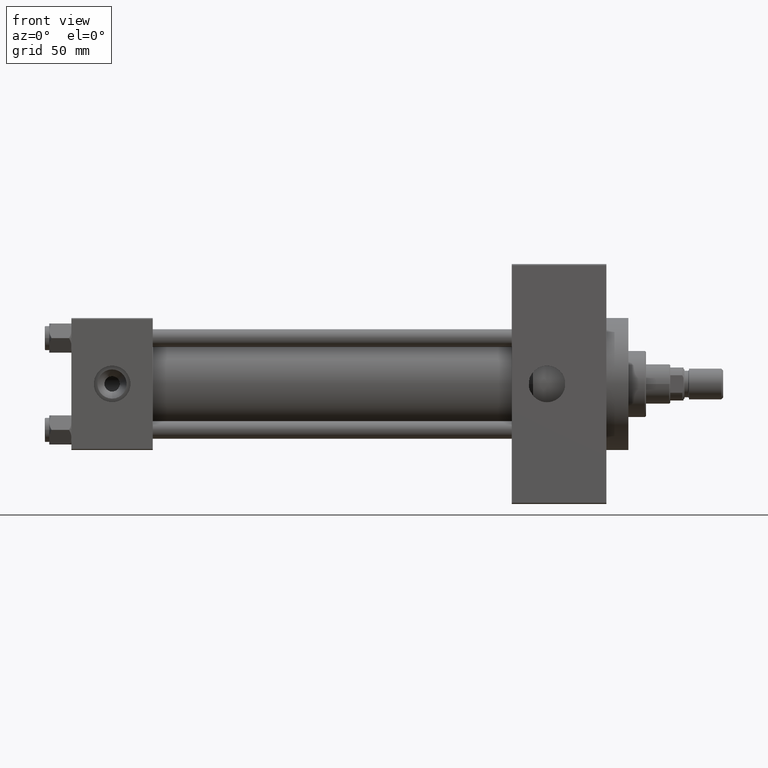
[diagram: clean part render]
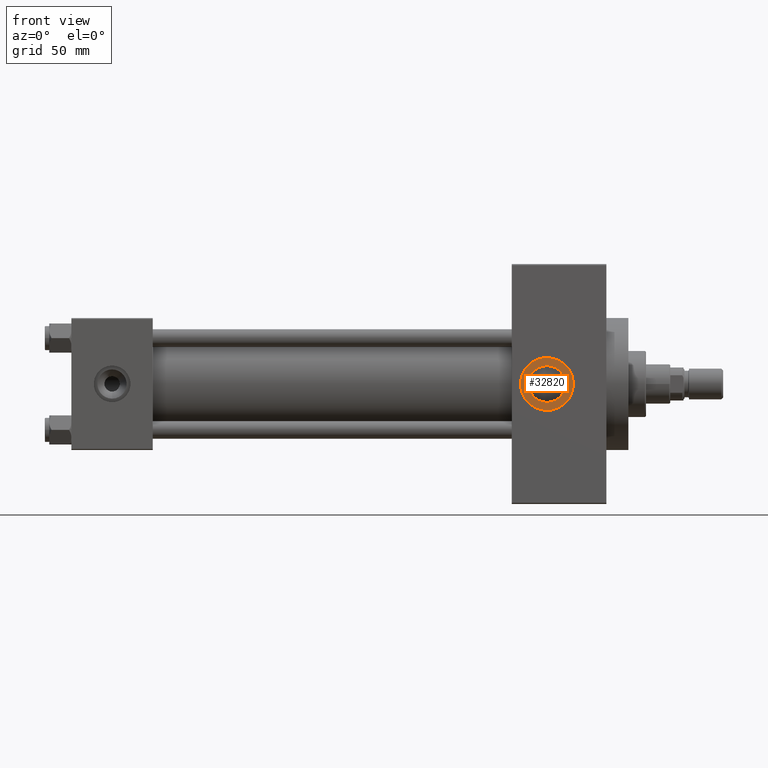
[diagram: same view with one face highlighted and labeled with its STEP entity id]
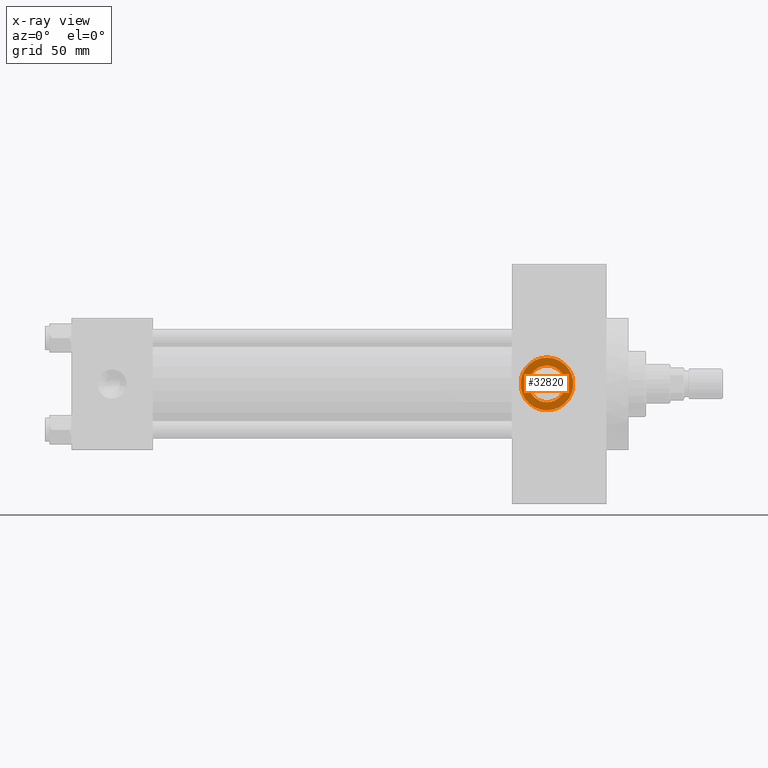
[diagram: x-ray of the same camera — body ghosted, the highlighted face saturated]
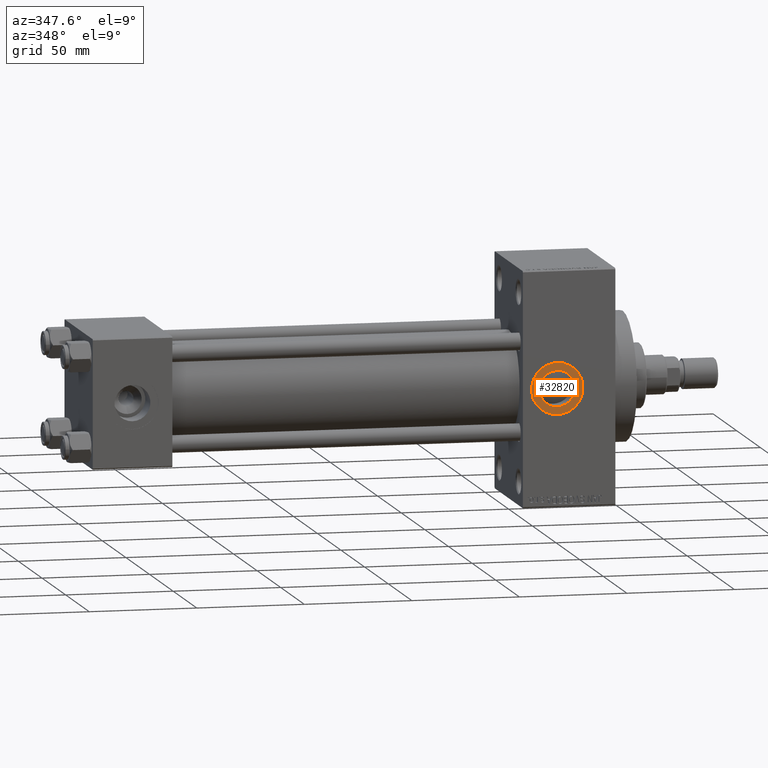
[diagram: same view with one face highlighted and labeled with its STEP entity id]
A machine part, front view. The second image highlights one B-rep face of the part: STEP entity #32820.
The next image is the same camera in x-ray: the body ghosted, the highlighted face saturated — about 0% of this face is hidden behind the body in this view.
A second angle (auxiliary view) of the same face is appended — the face is thin or edge-on in the first view.
In plain terms, the highlighted planar face has unit normal (0, -1, -0).
Its self-contained STEP definition (entity closure, byte-faithful):
#1112 = EDGE_CURVE ( 'NONE', #5516, #20274, #13845, .T. ) ;
#1232 = VERTEX_POINT ( 'NONE', #38361 ) ;
#3916 = CIRCLE ( 'NONE', #19406, 12.00000000000000533 ) ;
#4790 = CARTESIAN_POINT ( 'NONE',  ( 216.0000000000000284, -29.80000000000000071, -8.329999999999998295 ) ) ;
#5516 = VERTEX_POINT ( 'NONE', #4790 ) ;
#7294 = CIRCLE ( 'NONE', #11170, 12.00000000000000533 ) ;
#7402 = CARTESIAN_POINT ( 'NONE',  ( 216.0000000000000284, -29.80000000000000071, 1.734723475976807403E-17 ) ) ;
#7627 = DIRECTION ( 'NONE',  ( 0.000000000000000000, -1.000000000000000000, -8.673617379884036705E-17 ) ) ;
#7972 = AXIS2_PLACEMENT_3D ( 'NONE', #21720, #24885, #36260 ) ;
#11170 = AXIS2_PLACEMENT_3D ( 'NONE', #32917, #14002, #36301 ) ;
#12997 = ORIENTED_EDGE ( 'NONE', *, *, #31863, .T. ) ;
#13845 = CIRCLE ( 'NONE', #23914, 8.329999999999998295 ) ;
#14002 = DIRECTION ( 'NONE',  ( 0.000000000000000000, -1.000000000000000000, -8.673617379884036705E-17 ) ) ;
#15165 = PLANE ( 'NONE',  #46529 ) ;
#17208 = CARTESIAN_POINT ( 'NONE',  ( 216.0000000000000284, -29.80000000000000071, 12.00000000000000533 ) ) ;
#17378 = ORIENTED_EDGE ( 'NONE', *, *, #19964, .F. ) ;
#19406 = AXIS2_PLACEMENT_3D ( 'NONE', #32671, #22924, #22445 ) ;
#19964 = EDGE_CURVE ( 'NONE', #20274, #5516, #28942, .T. ) ;
#20274 = VERTEX_POINT ( 'NONE', #35716 ) ;
#21720 = CARTESIAN_POINT ( 'NONE',  ( 216.0000000000000284, -29.80000000000000071, 1.734723475976808635E-17 ) ) ;
#22204 = DIRECTION ( 'NONE',  ( 0.000000000000000000, 8.673617379884036705E-17, -1.000000000000000000 ) ) ;
#22445 = DIRECTION ( 'NONE',  ( 0.000000000000000000, 0.000000000000000000, -1.000000000000000000 ) ) ;
#22924 = DIRECTION ( 'NONE',  ( 0.000000000000000000, -1.000000000000000000, -8.673617379884036705E-17 ) ) ;
#23914 = AXIS2_PLACEMENT_3D ( 'NONE', #32670, #47417, #25164 ) ;
#24885 = DIRECTION ( 'NONE',  ( 0.000000000000000000, -1.000000000000000000, -8.673617379884036705E-17 ) ) ;
#25164 = DIRECTION ( 'NONE',  ( 0.000000000000000000, 0.000000000000000000, -1.000000000000000000 ) ) ;
#28942 = CIRCLE ( 'NONE', #7972, 8.329999999999998295 ) ;
#30814 = EDGE_LOOP ( 'NONE', ( #34539, #17378 ) ) ;
#31863 = EDGE_CURVE ( 'NONE', #42409, #1232, #3916, .T. ) ;
#32670 = CARTESIAN_POINT ( 'NONE',  ( 216.0000000000000284, -29.80000000000000071, 1.734723475976808635E-17 ) ) ;
#32671 = CARTESIAN_POINT ( 'NONE',  ( 216.0000000000000284, -29.80000000000000071, 1.734723475976807403E-17 ) ) ;
#32820 = ADVANCED_FACE ( 'NONE', ( #33593, #44234 ), #15165, .T. ) ;
#32917 = CARTESIAN_POINT ( 'NONE',  ( 216.0000000000000284, -29.80000000000000071, 1.734723475976807403E-17 ) ) ;
#33593 = FACE_BOUND ( 'NONE', #30814, .T. ) ;
#34353 = EDGE_LOOP ( 'NONE', ( #42402, #12997 ) ) ;
#34539 = ORIENTED_EDGE ( 'NONE', *, *, #1112, .F. ) ;
#35716 = CARTESIAN_POINT ( 'NONE',  ( 216.0000000000000284, -29.80000000000000071, 8.329999999999998295 ) ) ;
#36260 = DIRECTION ( 'NONE',  ( 0.000000000000000000, 0.000000000000000000, -1.000000000000000000 ) ) ;
#36301 = DIRECTION ( 'NONE',  ( 0.000000000000000000, 0.000000000000000000, -1.000000000000000000 ) ) ;
#38361 = CARTESIAN_POINT ( 'NONE',  ( 216.0000000000000284, -29.80000000000000071, -12.00000000000000533 ) ) ;
#42402 = ORIENTED_EDGE ( 'NONE', *, *, #43795, .T. ) ;
#42409 = VERTEX_POINT ( 'NONE', #17208 ) ;
#43795 = EDGE_CURVE ( 'NONE', #1232, #42409, #7294, .T. ) ;
#44234 = FACE_OUTER_BOUND ( 'NONE', #34353, .T. ) ;
#46529 = AXIS2_PLACEMENT_3D ( 'NONE', #7402, #7627, #22204 ) ;
#47417 = DIRECTION ( 'NONE',  ( 0.000000000000000000, -1.000000000000000000, -8.673617379884036705E-17 ) ) ;